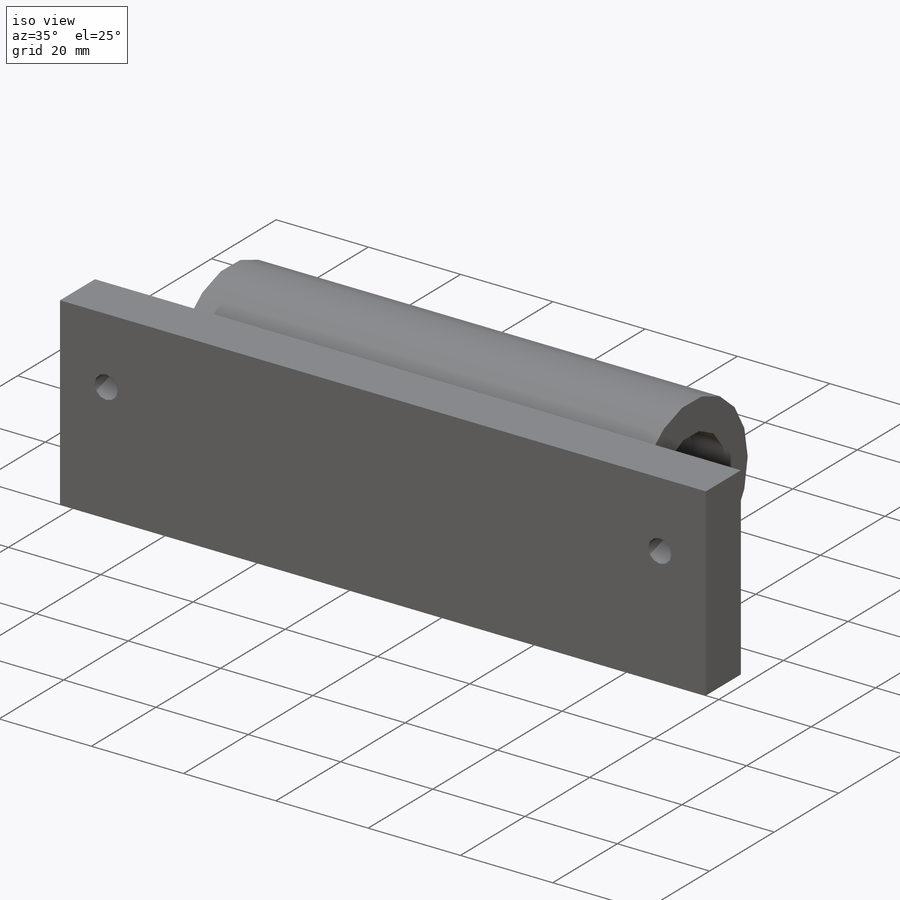
[diagram: iso view]
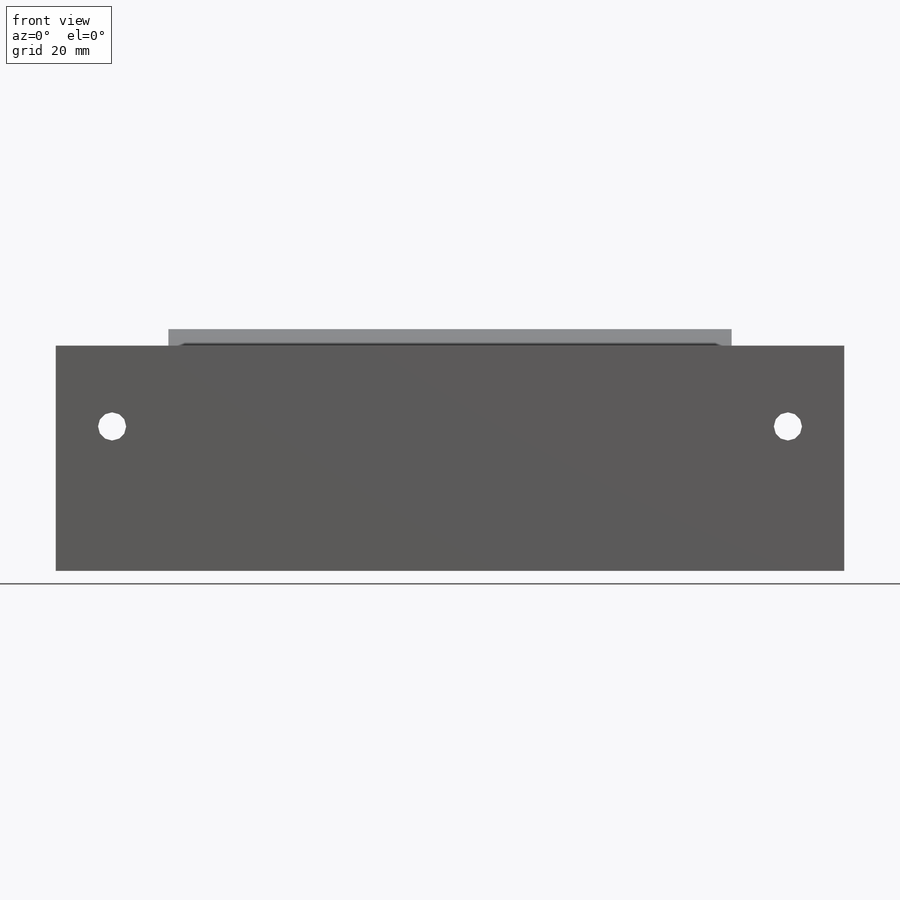
[diagram: front view]
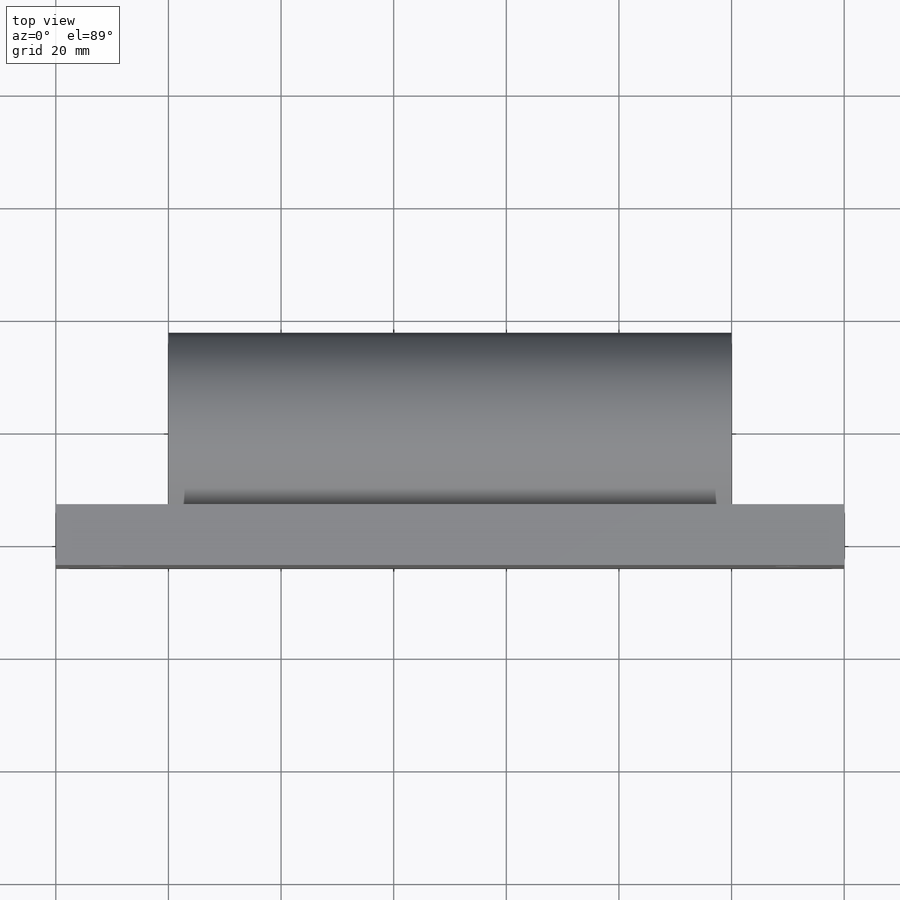
[diagram: top view]
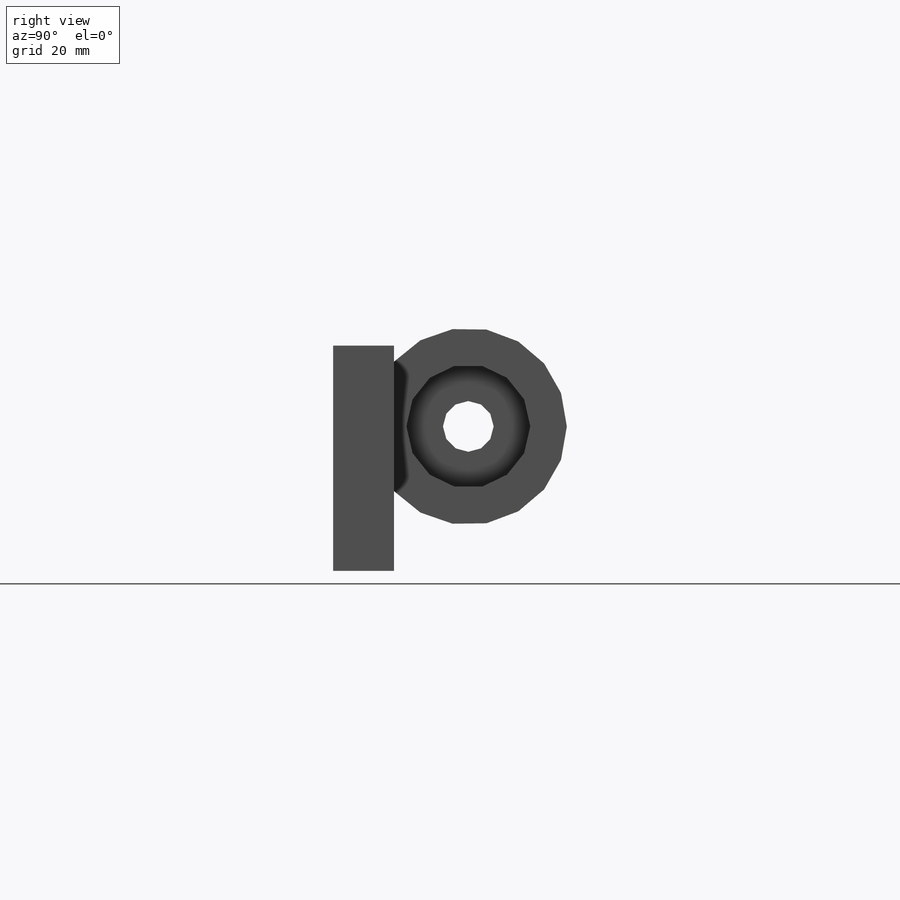
[diagram: right view]
SOLIDWORKS PART (.sldprt)
format: sldprt  version: not decoded by parser v0  size: 275,456 bytes
history: native  units: mm
features: sketch x7, cut_extrude x4, plane x3, extrude x3, material x1 (+9 scaffold rows collapsed)
feature tree (27):
  scaffold x9  (default folders/planes/origin — collapsed)
  material  "Материал <не указан>"
  plane  "Спереди"
  plane  "Сверху"
  plane  "Справа"
  sketch  "Эскиз1"  dims[c1.D1=9.0mm c1.D2=35.0mm c1.D3=40.0mm c1.D4=13.0mm c2.D3=40.0mm]
  extrude  "Бобышка-Вытянуть1"  Depth=100mm
  sketch  "Эскиз2"  dims[D1=40.0mm D2=13.0mm]
  extrude  "Бобышка-Вытянуть2"  Depth=20mm
  sketch  "Эскиз3"  dims[D1=40.0mm D2=13.0mm]
  extrude  "Бобышка-Вытянуть3"  Depth=20mm
  sketch  "Эскиз4"  dims[c1.D1=5.0mm c1.D2=5.0mm c2.D1=~0.302991mm]
  cut_extrude  "Вырез-Вытянуть1"  [1 undecoded]
  sketch  "Эскиз5"  dims[D1=8.5mm D2=8.5mm]
  cut_extrude  "Вырез-Вытянуть2"  Depth=5mm
  sketch  "Эскиз6"  dims[D1=22.0mm D2=11.0mm]
  cut_extrude  "Вырез-Вытянуть3"  Depth=7mm
  sketch  "Эскиз7"  dims[D1=22.0mm]
  cut_extrude  "Вырез-Вытянуть4"  Depth=7mm
decode coverage: 13 of 14 modeling features carry decoded parameters
note: ~ marks probable driven/reference dimensions
note: 1 parameter value undecoded
note: suppression state not decoded; provenance and decode notes live in map.json
